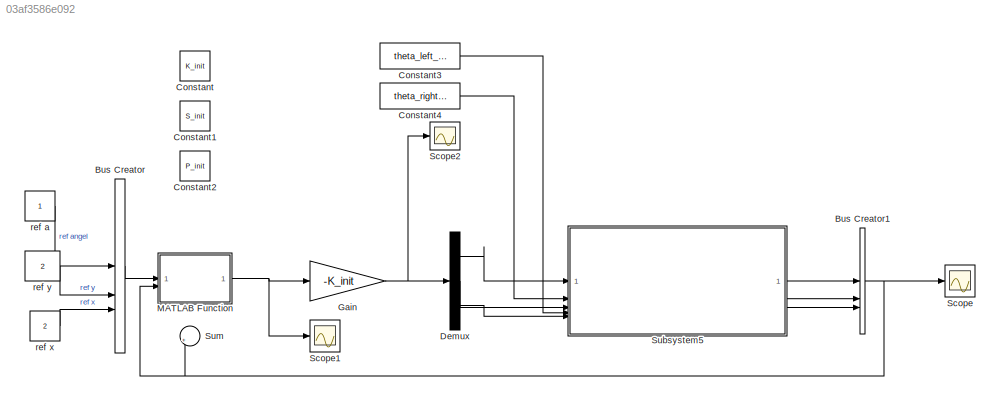
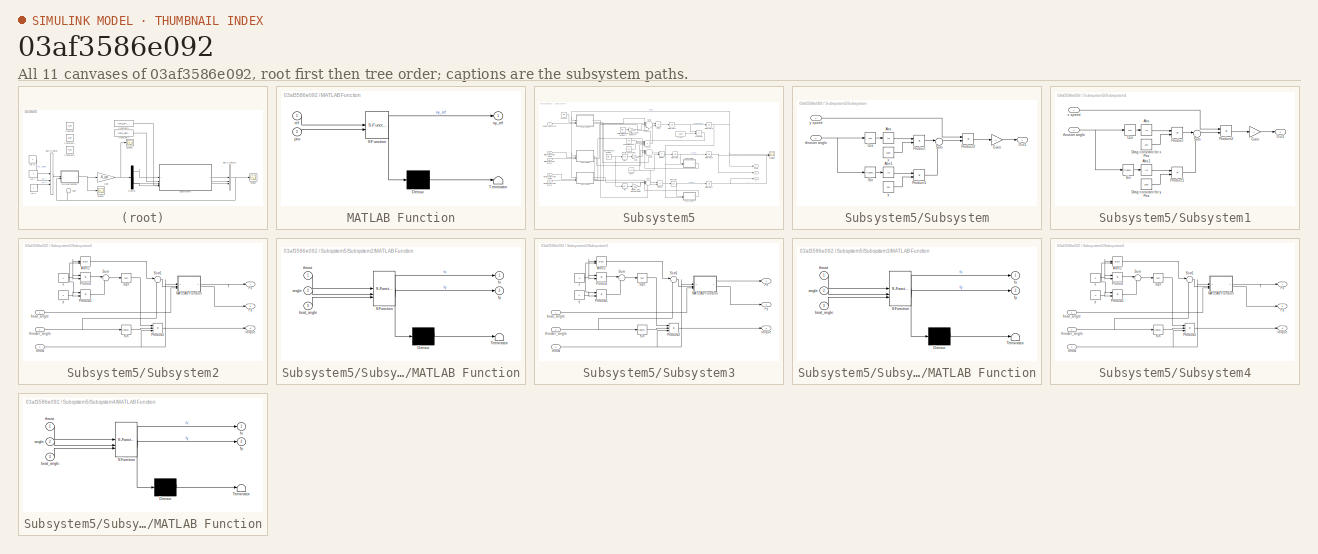
[diagram: thumbnail index - all 11 canvases of the model, root first then tree order]
MODEL slx_03af3586e092
KIND model
CONFIG AbsTol = auto
CONFIG EnableMultiTasking = off
CONFIG FixedStep = auto
CONFIG InitFcn = [theta_right_init, theta_left_init, K_init,S_init,P_init] = calculateLQR()
CONFIG MaxStep = auto
CONFIG MinStep = auto
CONFIG RelTol = 1e-3
CONFIG SampleTimeConstraint = Unconstrained
CONFIG SolverName = VariableStepAuto
CONFIG StartTime = 0.0
CONFIG StopTime = 10000.0
BLOCK [BusCreator] Bus Creator
  DisplayOption = bar
  InheritFromInputs = on
  Inputs = 3
BLOCK [BusCreator] Bus Creator1
  DisplayOption = bar
  InheritFromInputs = on
  Inputs = 3
BLOCK [Constant] Constant
  Value = K_init
BLOCK [Constant] Constant1
  Value = S_init
BLOCK [Constant] Constant2
  Value = P_init
BLOCK [Constant] Constant3
  Value = theta_left_init
BLOCK [Constant] Constant4
  Value = theta_right_init
BLOCK [Demux] Demux
  Outputs = 3
BLOCK [Gain] Gain
  Gain = -K_init
  Multiplication = Matrix(K*u)
BLOCK [SubSystem] MATLAB Function
  ErrorFcn = Stateflow.Translate.translate
  PermitHierarchicalResolution = ExplicitOnly
  SFBlockType = MATLAB Function
  TreatAsAtomicUnit = on
BLOCK [Demux] MATLAB Function/ Demux 
  Outputs = 1
BLOCK [S-Function] MATLAB Function/ SFunction 
  EnableBusSupport = on
  FunctionName = sf_sfun
  PortCounts = [2 2]
  SFcnIsStateOwnerBlock = off
  SFunctionDeploymentMode = off
  Tag = Stateflow S-Function 4
BLOCK [Terminator] MATLAB Function/ Terminator 
BLOCK [Outport] MATLAB Function/ny_ref
BLOCK [Inport] MATLAB Function/pos
  Port = 2
BLOCK [Inport] MATLAB Function/ref
BLOCK [Scope] Scope
  Floating = off
  NumInputPorts = 1
  ScopeSpecificationString = Simulink.scopes.TimeScopeBlockCfg('CurrentConfiguration', extmgr.ConfigurationSet(extmgr.Configuration('Core','General UI',true),extmgr.Configuration('Core','Source UI',true),extmgr.Configuration('Sources','WiredSimulink',true),extmgr.Configuration('Visuals','Time Domain',true,'SerializedDisplays',{struct('MinYLimReal','-101060.68972','MaxYLimReal','11302.03593','YLabelReal','','MinYLimMag','    0...<+1517ch>
BLOCK [Scope] Scope1
  Floating = off
  NumInputPorts = 1
  ScopeSpecificationString = Simulink.scopes.TimeScopeBlockCfg('CurrentConfiguration', extmgr.ConfigurationSet(extmgr.Configuration('Core','General UI',true),extmgr.Configuration('Core','Source UI',true),extmgr.Configuration('Sources','WiredSimulink',true,'DataLoggingVariableName','ScopeData1'),extmgr.Configuration('Visuals','Time Domain',true,'SerializedDisplays',{struct('MinYLimReal','-101.44609','MaxYLimReal','66.2235','YL...<+1542ch>
BLOCK [Scope] Scope2
  Floating = off
  NumInputPorts = 1
  ScopeSpecificationString = Simulink.scopes.TimeScopeBlockCfg('CurrentConfiguration', extmgr.ConfigurationSet(extmgr.Configuration('Core','General UI',true),extmgr.Configuration('Core','Source UI',true),extmgr.Configuration('Sources','WiredSimulink',true,'DataLoggingVariableName','ScopeData2'),extmgr.Configuration('Visuals','Time Domain',true,'SerializedDisplays',{struct('MinYLimReal','-1.11442','MaxYLimReal','0.86687','YLab...<+1498ch>
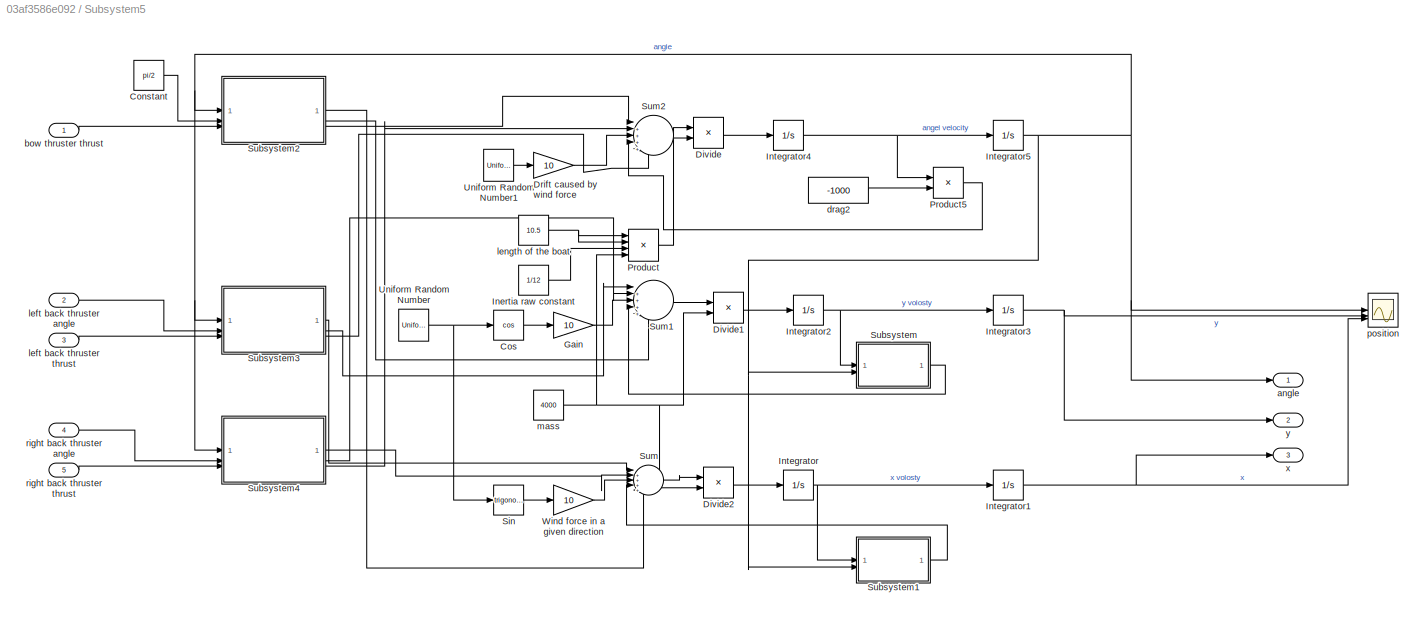
BLOCK [SubSystem] Subsystem5
BLOCK [Constant] Subsystem5/Constant
  Value = pi/2
BLOCK [Trigonometry] Subsystem5/Cos
  Operator = cos
BLOCK [Product] Subsystem5/Divide
  Inputs = */
BLOCK [Product] Subsystem5/Divide1
  Inputs = */
BLOCK [Product] Subsystem5/Divide2
  Inputs = */
BLOCK [Gain] Subsystem5/Drift caused by wind force
  Gain = 10
BLOCK [Gain] Subsystem5/Gain
  Gain = 10
BLOCK [Constant] Subsystem5/Inertia raw constant
  Value = 1/12
BLOCK [Integrator] Subsystem5/Integrator
BLOCK [Integrator] Subsystem5/Integrator1
BLOCK [Integrator] Subsystem5/Integrator2
BLOCK [Integrator] Subsystem5/Integrator3
BLOCK [Integrator] Subsystem5/Integrator4
BLOCK [Integrator] Subsystem5/Integrator5
BLOCK [Product] Subsystem5/Product
  Inputs = 4
BLOCK [Product] Subsystem5/Product5
BLOCK [Trigonometry] Subsystem5/Sin
BLOCK [SubSystem] Subsystem5/Subsystem
BLOCK [Abs] Subsystem5/Subsystem/Abs
  SaturateOnIntegerOverflow = off
BLOCK [Abs] Subsystem5/Subsystem/Abs1
  SaturateOnIntegerOverflow = off
BLOCK [Trigonometry] Subsystem5/Subsystem/Cos
  Operator = cos
BLOCK [Gain] Subsystem5/Subsystem/Gain
  Gain = -1
BLOCK [Outport] Subsystem5/Subsystem/Out1
BLOCK [Product] Subsystem5/Subsystem/Product
BLOCK [Product] Subsystem5/Subsystem/Product1
BLOCK [Product] Subsystem5/Subsystem/Product2
BLOCK [Trigonometry] Subsystem5/Subsystem/Sin
BLOCK [Sum] Subsystem5/Subsystem/Sum
  Inputs = |++
BLOCK [Inport] Subsystem5/Subsystem/thruster angle
  Port = 2
BLOCK [Constant] Subsystem5/Subsystem/x
  Value = 1000
BLOCK [Constant] Subsystem5/Subsystem/y
  Value = 100
BLOCK [Inport] Subsystem5/Subsystem/y speed
BLOCK [SubSystem] Subsystem5/Subsystem1
BLOCK [Abs] Subsystem5/Subsystem1/Abs
  SaturateOnIntegerOverflow = off
BLOCK [Abs] Subsystem5/Subsystem1/Abs1
  SaturateOnIntegerOverflow = off
BLOCK [Trigonometry] Subsystem5/Subsystem1/Cos
  Operator = cos
BLOCK [Constant] Subsystem5/Subsystem1/Drag constant for x Pos
  Value = 100
BLOCK [Constant] Subsystem5/Subsystem1/Drag constant for y Pos
  Value = 1000
BLOCK [Gain] Subsystem5/Subsystem1/Gain
  Gain = -1
BLOCK [Outport] Subsystem5/Subsystem1/Out1
BLOCK [Product] Subsystem5/Subsystem1/Product
BLOCK [Product] Subsystem5/Subsystem1/Product1
BLOCK [Product] Subsystem5/Subsystem1/Product2
BLOCK [Trigonometry] Subsystem5/Subsystem1/Sin
BLOCK [Sum] Subsystem5/Subsystem1/Sum
  Inputs = |++
BLOCK [Inport] Subsystem5/Subsystem1/thruster angle
  Port = 2
BLOCK [Inport] Subsystem5/Subsystem1/x speed
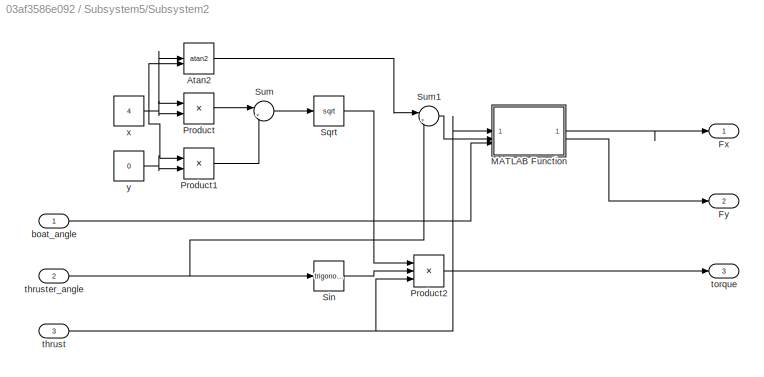
BLOCK [SubSystem] Subsystem5/Subsystem2
BLOCK [Trigonometry] Subsystem5/Subsystem2/Atan2
  Operator = atan2
BLOCK [Outport] Subsystem5/Subsystem2/Fx
BLOCK [Outport] Subsystem5/Subsystem2/Fy
  Port = 2
BLOCK [SubSystem] Subsystem5/Subsystem2/MATLAB Function
  ErrorFcn = Stateflow.Translate.translate
  PermitHierarchicalResolution = ExplicitOnly
  SFBlockType = MATLAB Function
  TreatAsAtomicUnit = on
BLOCK [Demux] Subsystem5/Subsystem2/MATLAB Function/ Demux 
  Outputs = 1
BLOCK [S-Function] Subsystem5/Subsystem2/MATLAB Function/ SFunction 
  EnableBusSupport = on
  FunctionName = sf_sfun
  PortCounts = [3 3]
  SFcnIsStateOwnerBlock = off
  SFunctionDeploymentMode = off
  Tag = Stateflow S-Function 2
BLOCK [Terminator] Subsystem5/Subsystem2/MATLAB Function/ Terminator 
BLOCK [Inport] Subsystem5/Subsystem2/MATLAB Function/angle
  Port = 2
BLOCK [Inport] Subsystem5/Subsystem2/MATLAB Function/boat_angle
  Port = 3
BLOCK [Outport] Subsystem5/Subsystem2/MATLAB Function/fx
BLOCK [Outport] Subsystem5/Subsystem2/MATLAB Function/fy
  Port = 2
BLOCK [Inport] Subsystem5/Subsystem2/MATLAB Function/thrust
BLOCK [Product] Subsystem5/Subsystem2/Product
BLOCK [Product] Subsystem5/Subsystem2/Product1
BLOCK [Product] Subsystem5/Subsystem2/Product2
  Inputs = 3
BLOCK [Trigonometry] Subsystem5/Subsystem2/Sin
BLOCK [Sqrt] Subsystem5/Subsystem2/Sqrt
BLOCK [Sum] Subsystem5/Subsystem2/Sum
  Inputs = |++
BLOCK [Sum] Subsystem5/Subsystem2/Sum1
  Inputs = |++
BLOCK [Inport] Subsystem5/Subsystem2/boat_angle
BLOCK [Inport] Subsystem5/Subsystem2/thrust
  Port = 3
BLOCK [Inport] Subsystem5/Subsystem2/thruster_angle
  Port = 2
BLOCK [Outport] Subsystem5/Subsystem2/torque
  Port = 3
BLOCK [Constant] Subsystem5/Subsystem2/x
  Value = 4
BLOCK [Constant] Subsystem5/Subsystem2/y
  Value = 0
BLOCK [SubSystem] Subsystem5/Subsystem3
BLOCK [Trigonometry] Subsystem5/Subsystem3/Atan2
  Operator = atan2
BLOCK [Outport] Subsystem5/Subsystem3/Fx
BLOCK [Outport] Subsystem5/Subsystem3/Fy
  Port = 2
BLOCK [SubSystem] Subsystem5/Subsystem3/MATLAB Function
  ErrorFcn = Stateflow.Translate.translate
  PermitHierarchicalResolution = ExplicitOnly
  SFBlockType = MATLAB Function
  TreatAsAtomicUnit = on
BLOCK [Demux] Subsystem5/Subsystem3/MATLAB Function/ Demux 
  Outputs = 1
BLOCK [S-Function] Subsystem5/Subsystem3/MATLAB Function/ SFunction 
  EnableBusSupport = on
  FunctionName = sf_sfun
  PortCounts = [3 3]
  SFcnIsStateOwnerBlock = off
  SFunctionDeploymentMode = off
  Tag = Stateflow S-Function 1
BLOCK [Terminator] Subsystem5/Subsystem3/MATLAB Function/ Terminator 
BLOCK [Inport] Subsystem5/Subsystem3/MATLAB Function/angle
  Port = 2
BLOCK [Inport] Subsystem5/Subsystem3/MATLAB Function/boat_angle
  Port = 3
BLOCK [Outport] Subsystem5/Subsystem3/MATLAB Function/fx
BLOCK [Outport] Subsystem5/Subsystem3/MATLAB Function/fy
  Port = 2
BLOCK [Inport] Subsystem5/Subsystem3/MATLAB Function/thrust
BLOCK [Product] Subsystem5/Subsystem3/Product
BLOCK [Product] Subsystem5/Subsystem3/Product1
BLOCK [Product] Subsystem5/Subsystem3/Product2
  Inputs = 3
BLOCK [Trigonometry] Subsystem5/Subsystem3/Sin
BLOCK [Sqrt] Subsystem5/Subsystem3/Sqrt
BLOCK [Sum] Subsystem5/Subsystem3/Sum
  Inputs = |++
BLOCK [Sum] Subsystem5/Subsystem3/Sum1
  Inputs = |++
BLOCK [Inport] Subsystem5/Subsystem3/boat_angle
BLOCK [Inport] Subsystem5/Subsystem3/thrust
  Port = 3
BLOCK [Inport] Subsystem5/Subsystem3/thruster_angle
  Port = 2
BLOCK [Outport] Subsystem5/Subsystem3/torque
  Port = 3
BLOCK [Constant] Subsystem5/Subsystem3/x
  Value = -5
BLOCK [Constant] Subsystem5/Subsystem3/y
  Value = 2
BLOCK [SubSystem] Subsystem5/Subsystem4
BLOCK [Trigonometry] Subsystem5/Subsystem4/Atan2
  Operator = atan2
BLOCK [Outport] Subsystem5/Subsystem4/Fx
BLOCK [Outport] Subsystem5/Subsystem4/Fy
  Port = 2
BLOCK [SubSystem] Subsystem5/Subsystem4/MATLAB Function
  ErrorFcn = Stateflow.Translate.translate
  PermitHierarchicalResolution = ExplicitOnly
  SFBlockType = MATLAB Function
  TreatAsAtomicUnit = on
BLOCK [Demux] Subsystem5/Subsystem4/MATLAB Function/ Demux 
  Outputs = 1
BLOCK [S-Function] Subsystem5/Subsystem4/MATLAB Function/ SFunction 
  EnableBusSupport = on
  FunctionName = sf_sfun
  PortCounts = [3 3]
  SFcnIsStateOwnerBlock = off
  SFunctionDeploymentMode = off
  Tag = Stateflow S-Function 3
BLOCK [Terminator] Subsystem5/Subsystem4/MATLAB Function/ Terminator 
BLOCK [Inport] Subsystem5/Subsystem4/MATLAB Function/angle
  Port = 2
BLOCK [Inport] Subsystem5/Subsystem4/MATLAB Function/boat_angle
  Port = 3
BLOCK [Outport] Subsystem5/Subsystem4/MATLAB Function/fx
BLOCK [Outport] Subsystem5/Subsystem4/MATLAB Function/fy
  Port = 2
BLOCK [Inport] Subsystem5/Subsystem4/MATLAB Function/thrust
BLOCK [Product] Subsystem5/Subsystem4/Product
BLOCK [Product] Subsystem5/Subsystem4/Product1
BLOCK [Product] Subsystem5/Subsystem4/Product2
  Inputs = 3
BLOCK [Trigonometry] Subsystem5/Subsystem4/Sin
BLOCK [Sqrt] Subsystem5/Subsystem4/Sqrt
BLOCK [Sum] Subsystem5/Subsystem4/Sum
  Inputs = |++
BLOCK [Sum] Subsystem5/Subsystem4/Sum1
  Inputs = |++
BLOCK [Inport] Subsystem5/Subsystem4/boat_angle
BLOCK [Inport] Subsystem5/Subsystem4/thrust
  Port = 3
BLOCK [Inport] Subsystem5/Subsystem4/thruster_angle
  Port = 2
BLOCK [Outport] Subsystem5/Subsystem4/torque
  Port = 3
BLOCK [Constant] Subsystem5/Subsystem4/x
  Value = -5
BLOCK [Constant] Subsystem5/Subsystem4/y
  Value = -2
BLOCK [Sum] Subsystem5/Sum
  Inputs = |+++++
BLOCK [Sum] Subsystem5/Sum1
  Inputs = |+++++
BLOCK [Sum] Subsystem5/Sum2
  Inputs = |+++++
BLOCK [UniformRandomNumber] Subsystem5/Uniform Random Number
  Maximum = 6.28
  Minimum = 0
  SampleTime = 0.1
  Seed = 0.1
BLOCK [UniformRandomNumber] Subsystem5/Uniform Random Number1
  SampleTime = 0.1
  Seed = 2
BLOCK [Gain] Subsystem5/Wind force in a given direction
  Gain = 10
BLOCK [Outport] Subsystem5/angle
BLOCK [Inport] Subsystem5/bow thruster thrust 
BLOCK [Constant] Subsystem5/drag2
  Value = -1000
BLOCK [Inport] Subsystem5/left back thruster angle
  Port = 2
BLOCK [Inport] Subsystem5/left back thruster thrust
  Port = 3
BLOCK [Constant] Subsystem5/length of the boat
  Value = 10.5
BLOCK [Constant] Subsystem5/mass
  Value = 4000
BLOCK [Scope] Subsystem5/position
  Floating = off
  NumInputPorts = 3
  ScopeSpecificationString = Simulink.scopes.TimeScopeBlockCfg('CurrentConfiguration', extmgr.ConfigurationSet(extmgr.Configuration('Core','General UI',true),extmgr.Configuration('Core','Source UI',true),extmgr.Configuration('Sources','WiredSimulink',true,'DataLoggingVariableName','ScopeData12'),extmgr.Configuration('Visuals','Time Domain',true,'SerializedDisplays',{struct('MinYLimReal','-2.78891','MaxYLimReal','2.73841','YLa...<+1845ch>
BLOCK [Inport] Subsystem5/right back thruster angle
  Port = 4
BLOCK [Inport] Subsystem5/right back thruster thrust
  Port = 5
BLOCK [Outport] Subsystem5/x
  Port = 3
BLOCK [Outport] Subsystem5/y
  Port = 2
BLOCK [Sum] Sum
  Inputs = |+-
BLOCK [Constant] ref a
BLOCK [Constant] ref x
  Value = 2
BLOCK [Constant] ref y
  Value = 2
NET Bus Creator1:1 -> MATLAB Function:2, Scope:1, Sum:2
LINE Bus Creator:1 -> MATLAB Function:1
LINE Constant3:1 -> Subsystem5:4
LINE Constant4:1 -> Subsystem5:2
LINE Demux:1 -> Subsystem5:1
LINE Demux:2 -> Subsystem5:3
LINE Demux:3 -> Subsystem5:5
NET Gain:1 -> Demux:1, Scope2:1
NET MATLAB Function:1 -> Gain:1, Scope1:1
LINE Subsystem5/Constant:1 -> Subsystem5/Subsystem2:2
LINE Subsystem5/Cos:1 -> Subsystem5/Gain:1
LINE Subsystem5/Divide1:1 -> Subsystem5/Integrator2:1
LINE Subsystem5/Divide2:1 -> Subsystem5/Integrator:1
LINE Subsystem5/Divide:1 -> Subsystem5/Integrator4:1
LINE Subsystem5/Drift caused by wind force:1 -> Subsystem5/Sum2:3
LINE Subsystem5/Gain:1 -> Subsystem5/Sum1:3
LINE Subsystem5/Inertia raw constant:1 -> Subsystem5/Product:3
NET Subsystem5/Integrator1:1 -> Subsystem5/position:3, Subsystem5/x:1
NET Subsystem5/Integrator2:1 -> Subsystem5/Integrator3:1, Subsystem5/Subsystem:1
NET Subsystem5/Integrator3:1 -> Subsystem5/position:2, Subsystem5/y:1
NET Subsystem5/Integrator4:1 -> Subsystem5/Integrator5:1, Subsystem5/Product5:1
NET Subsystem5/Integrator5:1 -> Subsystem5/Subsystem1:2, Subsystem5/Subsystem2:1, Subsystem5/Subsystem3:1, Subsystem5/Subsystem4:1, Subsystem5/Subsystem:2, Subsystem5/angle:1, Subsystem5/position:1
NET Subsystem5/Integrator:1 -> Subsystem5/Integrator1:1, Subsystem5/Subsystem1:1
LINE Subsystem5/Product5:1 -> Subsystem5/Sum2:4
LINE Subsystem5/Product:1 -> Subsystem5/Divide:2
LINE Subsystem5/Sin:1 -> Subsystem5/Wind force in a given direction:1
LINE Subsystem5/Subsystem/Abs1:1 -> Subsystem5/Subsystem/Product1:1
LINE Subsystem5/Subsystem/Abs:1 -> Subsystem5/Subsystem/Product:1
LINE Subsystem5/Subsystem/Cos:1 -> Subsystem5/Subsystem/Abs:1
LINE Subsystem5/Subsystem/Gain:1 -> Subsystem5/Subsystem/Out1:1
LINE Subsystem5/Subsystem/Product1:1 -> Subsystem5/Subsystem/Sum:2
LINE Subsystem5/Subsystem/Product2:1 -> Subsystem5/Subsystem/Gain:1
LINE Subsystem5/Subsystem/Product:1 -> Subsystem5/Subsystem/Sum:1
LINE Subsystem5/Subsystem/Sin:1 -> Subsystem5/Subsystem/Abs1:1
LINE Subsystem5/Subsystem/Sum:1 -> Subsystem5/Subsystem/Product2:2
NET Subsystem5/Subsystem/thruster angle:1 -> Subsystem5/Subsystem/Cos:1, Subsystem5/Subsystem/Sin:1
LINE Subsystem5/Subsystem/x:1 -> Subsystem5/Subsystem/Product:2
LINE Subsystem5/Subsystem/y speed:1 -> Subsystem5/Subsystem/Product2:1
LINE Subsystem5/Subsystem/y:1 -> Subsystem5/Subsystem/Product1:2
LINE Subsystem5/Subsystem1/Abs1:1 -> Subsystem5/Subsystem1/Product1:1
LINE Subsystem5/Subsystem1/Abs:1 -> Subsystem5/Subsystem1/Product:1
LINE Subsystem5/Subsystem1/Cos:1 -> Subsystem5/Subsystem1/Abs:1
LINE Subsystem5/Subsystem1/Drag constant for x Pos:1 -> Subsystem5/Subsystem1/Product:2
LINE Subsystem5/Subsystem1/Drag constant for y Pos:1 -> Subsystem5/Subsystem1/Product1:2
LINE Subsystem5/Subsystem1/Gain:1 -> Subsystem5/Subsystem1/Out1:1
LINE Subsystem5/Subsystem1/Product1:1 -> Subsystem5/Subsystem1/Sum:2
LINE Subsystem5/Subsystem1/Product2:1 -> Subsystem5/Subsystem1/Gain:1
LINE Subsystem5/Subsystem1/Product:1 -> Subsystem5/Subsystem1/Sum:1
LINE Subsystem5/Subsystem1/Sin:1 -> Subsystem5/Subsystem1/Abs1:1
LINE Subsystem5/Subsystem1/Sum:1 -> Subsystem5/Subsystem1/Product2:2
NET Subsystem5/Subsystem1/thruster angle:1 -> Subsystem5/Subsystem1/Cos:1, Subsystem5/Subsystem1/Sin:1
LINE Subsystem5/Subsystem1/x speed:1 -> Subsystem5/Subsystem1/Product2:1
LINE Subsystem5/Subsystem1:1 -> Subsystem5/Sum:4
LINE Subsystem5/Subsystem2/Atan2:1 -> Subsystem5/Subsystem2/Sum1:1
LINE Subsystem5/Subsystem2/MATLAB Function:1 -> Subsystem5/Subsystem2/Fx:1
LINE Subsystem5/Subsystem2/MATLAB Function:2 -> Subsystem5/Subsystem2/Fy:1
LINE Subsystem5/Subsystem2/Product1:1 -> Subsystem5/Subsystem2/Sum:2
LINE Subsystem5/Subsystem2/Product2:1 -> Subsystem5/Subsystem2/torque:1
LINE Subsystem5/Subsystem2/Product:1 -> Subsystem5/Subsystem2/Sum:1
LINE Subsystem5/Subsystem2/Sin:1 -> Subsystem5/Subsystem2/Product2:2
LINE Subsystem5/Subsystem2/Sqrt:1 -> Subsystem5/Subsystem2/Product2:1
LINE Subsystem5/Subsystem2/Sum1:1 -> Subsystem5/Subsystem2/MATLAB Function:2
LINE Subsystem5/Subsystem2/Sum:1 -> Subsystem5/Subsystem2/Sqrt:1
LINE Subsystem5/Subsystem2/boat_angle:1 -> Subsystem5/Subsystem2/MATLAB Function:3
NET Subsystem5/Subsystem2/thrust:1 -> Subsystem5/Subsystem2/MATLAB Function:1, Subsystem5/Subsystem2/Product2:3
NET Subsystem5/Subsystem2/thruster_angle:1 -> Subsystem5/Subsystem2/Sin:1, Subsystem5/Subsystem2/Sum1:2
NET Subsystem5/Subsystem2/x:1 -> Subsystem5/Subsystem2/Atan2:1, Subsystem5/Subsystem2/Product:1, Subsystem5/Subsystem2/Product:2
NET Subsystem5/Subsystem2/y:1 -> Subsystem5/Subsystem2/Atan2:2, Subsystem5/Subsystem2/Product1:1, Subsystem5/Subsystem2/Product1:2
LINE Subsystem5/Subsystem2:1 -> Subsystem5/Sum:5
LINE Subsystem5/Subsystem2:2 -> Subsystem5/Sum1:5
LINE Subsystem5/Subsystem2:3 -> Subsystem5/Sum2:1
LINE Subsystem5/Subsystem3/Atan2:1 -> Subsystem5/Subsystem3/Sum1:1
LINE Subsystem5/Subsystem3/MATLAB Function:1 -> Subsystem5/Subsystem3/Fx:1
LINE Subsystem5/Subsystem3/MATLAB Function:2 -> Subsystem5/Subsystem3/Fy:1
LINE Subsystem5/Subsystem3/Product1:1 -> Subsystem5/Subsystem3/Sum:2
LINE Subsystem5/Subsystem3/Product2:1 -> Subsystem5/Subsystem3/torque:1
LINE Subsystem5/Subsystem3/Product:1 -> Subsystem5/Subsystem3/Sum:1
LINE Subsystem5/Subsystem3/Sin:1 -> Subsystem5/Subsystem3/Product2:2
LINE Subsystem5/Subsystem3/Sqrt:1 -> Subsystem5/Subsystem3/Product2:1
LINE Subsystem5/Subsystem3/Sum1:1 -> Subsystem5/Subsystem3/MATLAB Function:2
LINE Subsystem5/Subsystem3/Sum:1 -> Subsystem5/Subsystem3/Sqrt:1
LINE Subsystem5/Subsystem3/boat_angle:1 -> Subsystem5/Subsystem3/MATLAB Function:3
NET Subsystem5/Subsystem3/thrust:1 -> Subsystem5/Subsystem3/MATLAB Function:1, Subsystem5/Subsystem3/Product2:3
NET Subsystem5/Subsystem3/thruster_angle:1 -> Subsystem5/Subsystem3/Sin:1, Subsystem5/Subsystem3/Sum1:2
NET Subsystem5/Subsystem3/x:1 -> Subsystem5/Subsystem3/Atan2:1, Subsystem5/Subsystem3/Product:1, Subsystem5/Subsystem3/Product:2
NET Subsystem5/Subsystem3/y:1 -> Subsystem5/Subsystem3/Atan2:2, Subsystem5/Subsystem3/Product1:1, Subsystem5/Subsystem3/Product1:2
LINE Subsystem5/Subsystem3:1 -> Subsystem5/Sum:1
LINE Subsystem5/Subsystem3:2 -> Subsystem5/Sum1:1
LINE Subsystem5/Subsystem3:3 -> Subsystem5/Sum2:5
LINE Subsystem5/Subsystem4/Atan2:1 -> Subsystem5/Subsystem4/Sum1:1
LINE Subsystem5/Subsystem4/MATLAB Function:1 -> Subsystem5/Subsystem4/Fx:1
LINE Subsystem5/Subsystem4/MATLAB Function:2 -> Subsystem5/Subsystem4/Fy:1
LINE Subsystem5/Subsystem4/Product1:1 -> Subsystem5/Subsystem4/Sum:2
LINE Subsystem5/Subsystem4/Product2:1 -> Subsystem5/Subsystem4/torque:1
LINE Subsystem5/Subsystem4/Product:1 -> Subsystem5/Subsystem4/Sum:1
LINE Subsystem5/Subsystem4/Sin:1 -> Subsystem5/Subsystem4/Product2:2
LINE Subsystem5/Subsystem4/Sqrt:1 -> Subsystem5/Subsystem4/Product2:1
LINE Subsystem5/Subsystem4/Sum1:1 -> Subsystem5/Subsystem4/MATLAB Function:2
LINE Subsystem5/Subsystem4/Sum:1 -> Subsystem5/Subsystem4/Sqrt:1
LINE Subsystem5/Subsystem4/boat_angle:1 -> Subsystem5/Subsystem4/MATLAB Function:3
NET Subsystem5/Subsystem4/thrust:1 -> Subsystem5/Subsystem4/MATLAB Function:1, Subsystem5/Subsystem4/Product2:3
NET Subsystem5/Subsystem4/thruster_angle:1 -> Subsystem5/Subsystem4/Sin:1, Subsystem5/Subsystem4/Sum1:2
NET Subsystem5/Subsystem4/x:1 -> Subsystem5/Subsystem4/Atan2:1, Subsystem5/Subsystem4/Product:1, Subsystem5/Subsystem4/Product:2
NET Subsystem5/Subsystem4/y:1 -> Subsystem5/Subsystem4/Atan2:2, Subsystem5/Subsystem4/Product1:1, Subsystem5/Subsystem4/Product1:2
LINE Subsystem5/Subsystem4:1 -> Subsystem5/Sum:2
LINE Subsystem5/Subsystem4:2 -> Subsystem5/Sum1:2
LINE Subsystem5/Subsystem4:3 -> Subsystem5/Sum2:2
LINE Subsystem5/Subsystem:1 -> Subsystem5/Sum1:4
LINE Subsystem5/Sum1:1 -> Subsystem5/Divide1:1
LINE Subsystem5/Sum2:1 -> Subsystem5/Divide:1
LINE Subsystem5/Sum:1 -> Subsystem5/Divide2:1
LINE Subsystem5/Uniform Random Number1:1 -> Subsystem5/Drift caused by wind force:1
NET Subsystem5/Uniform Random Number:1 -> Subsystem5/Cos:1, Subsystem5/Sin:1
LINE Subsystem5/Wind force in a given direction:1 -> Subsystem5/Sum:3
LINE Subsystem5/bow thruster thrust :1 -> Subsystem5/Subsystem2:3
LINE Subsystem5/drag2:1 -> Subsystem5/Product5:2
LINE Subsystem5/left back thruster angle:1 -> Subsystem5/Subsystem3:2
LINE Subsystem5/left back thruster thrust:1 -> Subsystem5/Subsystem3:3
NET Subsystem5/length of the boat:1 -> Subsystem5/Product:1, Subsystem5/Product:2
NET Subsystem5/mass:1 -> Subsystem5/Divide1:2, Subsystem5/Divide2:2, Subsystem5/Product:4
LINE Subsystem5/right back thruster angle:1 -> Subsystem5/Subsystem4:2
LINE Subsystem5/right back thruster thrust:1 -> Subsystem5/Subsystem4:3
LINE Subsystem5:1 -> Bus Creator1:1
LINE Subsystem5:2 -> Bus Creator1:2
LINE Subsystem5:3 -> Bus Creator1:3
LINE ref a:1 -> Bus Creator:1
LINE ref x:1 -> Bus Creator:3
LINE ref y:1 -> Bus Creator:2
note: NET lines group one-source signal fan-out (src -> all destinations, sorted); 1:1 wires keep LINE
CHART Subsystem5/Subsystem3/MATLAB Function states=1 transitions=1
  STATE_LABEL 'eML_blk_kernel()'
  STATE_LABEL 'SCRIPT:\nfunction [fx,fy] = fcn(thrust, angle, boat_angle)\n\nRx = [cos(boat_angle) -sin(boat_angle); sin(boat_angle) cos(boat_angle)];\nf = [sin(angle); cos(angle)];\nmf = (Rx*f)*thrust*(-1);\nfx = mf(1);\nfy = mf(2);'
CHART Subsystem5/Subsystem2/MATLAB Function states=1 transitions=1
  STATE_LABEL 'eML_blk_kernel()'
  STATE_LABEL 'SCRIPT:\nfunction [fx,fy] = fcn(thrust, angle, boat_angle)\n\nRx = [cos(boat_angle) -sin(boat_angle); sin(boat_angle) cos(boat_angle)];\nf = [sin(angle); cos(angle)];\nmf = (Rx*f)*thrust;\nfx = mf(1);\nfy = mf(2);'
CHART Subsystem5/Subsystem4/MATLAB Function states=1 transitions=1
  STATE_LABEL 'eML_blk_kernel()'
  STATE_LABEL 'SCRIPT:\nfunction [fx,fy] = fcn(thrust, angle, boat_angle)\n\nRx = [cos(boat_angle) -sin(boat_angle); sin(boat_angle) cos(boat_angle)];\nf = [sin(angle); cos(angle)];\nmf = (Rx*f)*thrust*(-1);\nfx = mf(1);\nfy = mf(2);'
CHART MATLAB Function states=1 transitions=1
  STATE_LABEL 'eML_blk_kernel()'
  STATE_LABEL 'SCRIPT:\nfunction ny_ref = fcn(ref ,pos)\n\nxy_pos = [0 0 ref(1);\n          0 0 ref(2);\n          0 0 1];\n\nglo_to_lok = [cos(pos(3)) -sin(pos(3)) pos(1);\n              sin(pos(3)) cos(pos(3))  pos(2);\n              0           0            1];\n\nlok_ref = inv(glo_to_lok)*xy_pos;\nny_ref  = [-lok_ref(1,3); -lok_ref(2,3); ref(3)- pos(3)];\n\n%lok_ref = inv(glo_to_lok)*xy_pos;\n%ny_ref  = [lok_ref(1,3) - pos...<+44ch>'
CHART  states=0 transitions=0
CHART  states=0 transitions=0
CHART  states=0 transitions=0
CHART  states=0 transitions=0
